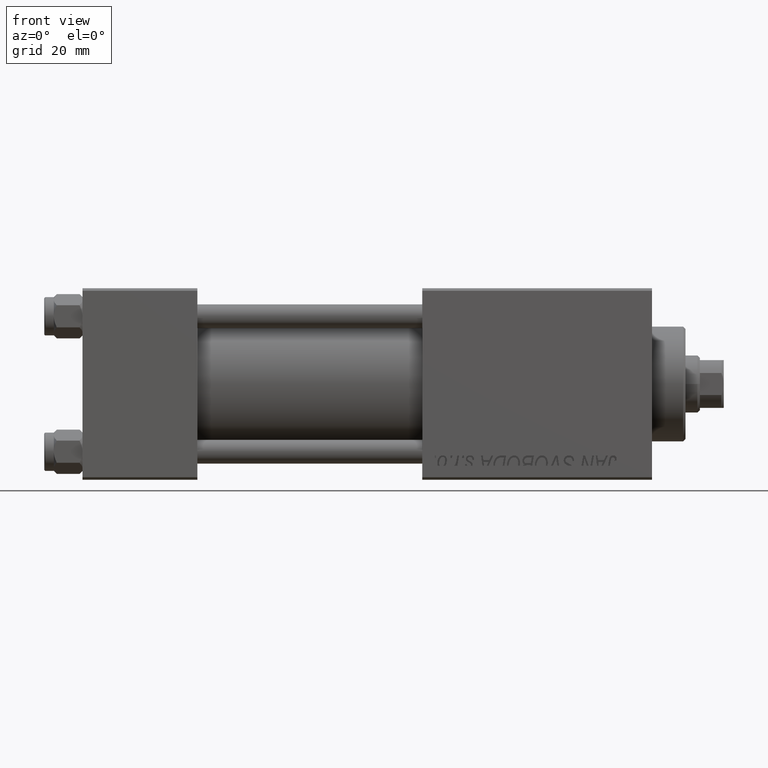
[diagram: clean part render]
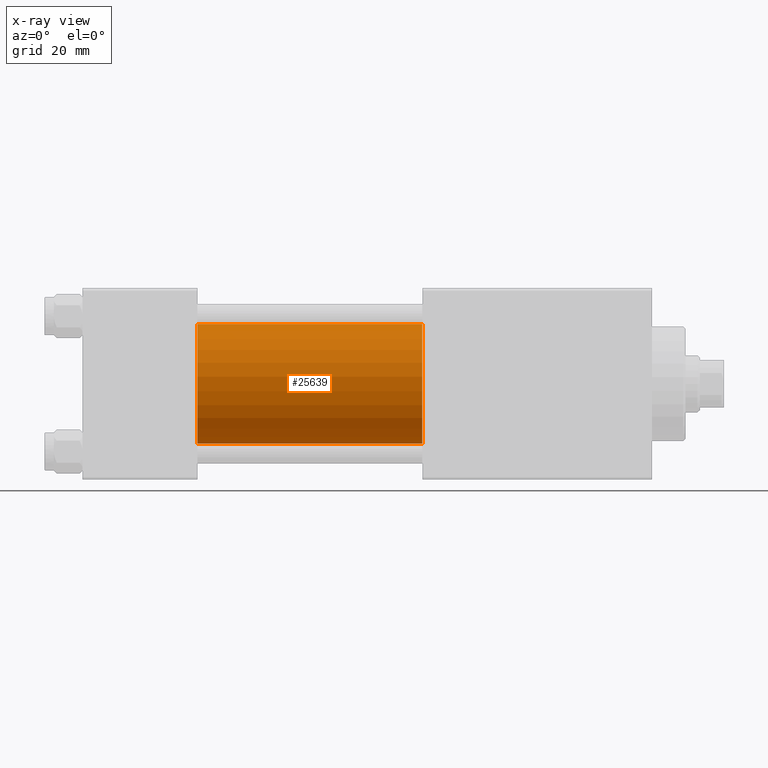
[diagram: x-ray — body ghosted, one internal face saturated and labeled with its STEP entity id]
A machine part, front view, then the same camera in x-ray: the body is ghosted and one INTERNAL B-rep face — a face not visible from any outside direction — is saturated and labeled: STEP entity #25639.
In plain terms, the highlighted cylindrical surface (partial cylindrical patch) has radius 12.5 mm, axis along (-1, -0, -0).
Its self-contained STEP definition (entity closure, byte-faithful):
#582 = DIRECTION ( 'NONE',  ( 0.000000000000000000, 0.000000000000000000, 1.000000000000000000 ) ) ;
#1162 = ORIENTED_EDGE ( 'NONE', *, *, #39801, .F. ) ;
#2252 = ORIENTED_EDGE ( 'NONE', *, *, #43408, .T. ) ;
#4160 = LINE ( 'NONE', #39623, #48417 ) ;
#4764 = VERTEX_POINT ( 'NONE', #15385 ) ;
#5554 = ORIENTED_EDGE ( 'NONE', *, *, #28275, .T. ) ;
#7234 = VERTEX_POINT ( 'NONE', #12399 ) ;
#8710 = DIRECTION ( 'NONE',  ( 1.000000000000000000, 0.000000000000000000, 0.000000000000000000 ) ) ;
#11197 = LINE ( 'NONE', #42114, #36680 ) ;
#11480 = CARTESIAN_POINT ( 'NONE',  ( 71.00000000000001421, -2.602085213965210642E-15, 0.000000000000000000 ) ) ;
#12399 = CARTESIAN_POINT ( 'NONE',  ( 71.00000000000001421, -1.071276715031019515E-15, -12.49999999999999645 ) ) ;
#15385 = CARTESIAN_POINT ( 'NONE',  ( 71.00000000000001421, -2.602085213965210642E-15, 12.49999999999999645 ) ) ;
#16327 = CIRCLE ( 'NONE', #31739, 12.49999999999999645 ) ;
#20917 = CARTESIAN_POINT ( 'NONE',  ( 24.00000000000000000, -1.071276715031019515E-15, -12.49999999999999645 ) ) ;
#22060 = CARTESIAN_POINT ( 'NONE',  ( 71.00000000000001421, -2.602085213965210642E-15, 0.000000000000000000 ) ) ;
#22550 = DIRECTION ( 'NONE',  ( 1.000000000000000000, 0.000000000000000000, 0.000000000000000000 ) ) ;
#23452 = ORIENTED_EDGE ( 'NONE', *, *, #27445, .F. ) ;
#24652 = CARTESIAN_POINT ( 'NONE',  ( 24.00000000000000000, -2.602085213965210642E-15, 0.000000000000000000 ) ) ;
#25639 = ADVANCED_FACE ( 'NONE', ( #46211 ), #45952, .F. ) ;
#27445 = EDGE_CURVE ( 'NONE', #4764, #30237, #4160, .T. ) ;
#28217 = DIRECTION ( 'NONE',  ( -1.000000000000000000, -0.000000000000000000, -0.000000000000000000 ) ) ;
#28275 = EDGE_CURVE ( 'NONE', #4764, #7234, #37123, .T. ) ;
#30237 = VERTEX_POINT ( 'NONE', #46916 ) ;
#31739 = AXIS2_PLACEMENT_3D ( 'NONE', #24652, #8710, #36319 ) ;
#34009 = DIRECTION ( 'NONE',  ( -1.000000000000000000, -0.000000000000000000, -0.000000000000000000 ) ) ;
#36319 = DIRECTION ( 'NONE',  ( 0.000000000000000000, 0.000000000000000000, -1.000000000000000000 ) ) ;
#36680 = VECTOR ( 'NONE', #34009, 1000.000000000000000 ) ;
#37123 = CIRCLE ( 'NONE', #48443, 12.49999999999999645 ) ;
#38456 = EDGE_LOOP ( 'NONE', ( #5554, #2252, #1162, #23452 ) ) ;
#39485 = AXIS2_PLACEMENT_3D ( 'NONE', #11480, #41895, #582 ) ;
#39623 = CARTESIAN_POINT ( 'NONE',  ( 71.00000000000001421, -2.602085213965210642E-15, 12.49999999999999645 ) ) ;
#39801 = EDGE_CURVE ( 'NONE', #30237, #42776, #16327, .T. ) ;
#41895 = DIRECTION ( 'NONE',  ( -1.000000000000000000, -0.000000000000000000, -0.000000000000000000 ) ) ;
#42114 = CARTESIAN_POINT ( 'NONE',  ( 71.00000000000001421, -1.071276715031019515E-15, -12.49999999999999645 ) ) ;
#42776 = VERTEX_POINT ( 'NONE', #20917 ) ;
#43408 = EDGE_CURVE ( 'NONE', #7234, #42776, #11197, .T. ) ;
#45952 = CYLINDRICAL_SURFACE ( 'NONE', #39485, 12.49999999999999645 ) ;
#46211 = FACE_OUTER_BOUND ( 'NONE', #38456, .T. ) ;
#46916 = CARTESIAN_POINT ( 'NONE',  ( 24.00000000000000000, -2.602085213965210642E-15, 12.49999999999999645 ) ) ;
#48417 = VECTOR ( 'NONE', #28217, 1000.000000000000000 ) ;
#48443 = AXIS2_PLACEMENT_3D ( 'NONE', #22060, #22550, #48686 ) ;
#48686 = DIRECTION ( 'NONE',  ( 0.000000000000000000, 0.000000000000000000, -1.000000000000000000 ) ) ;